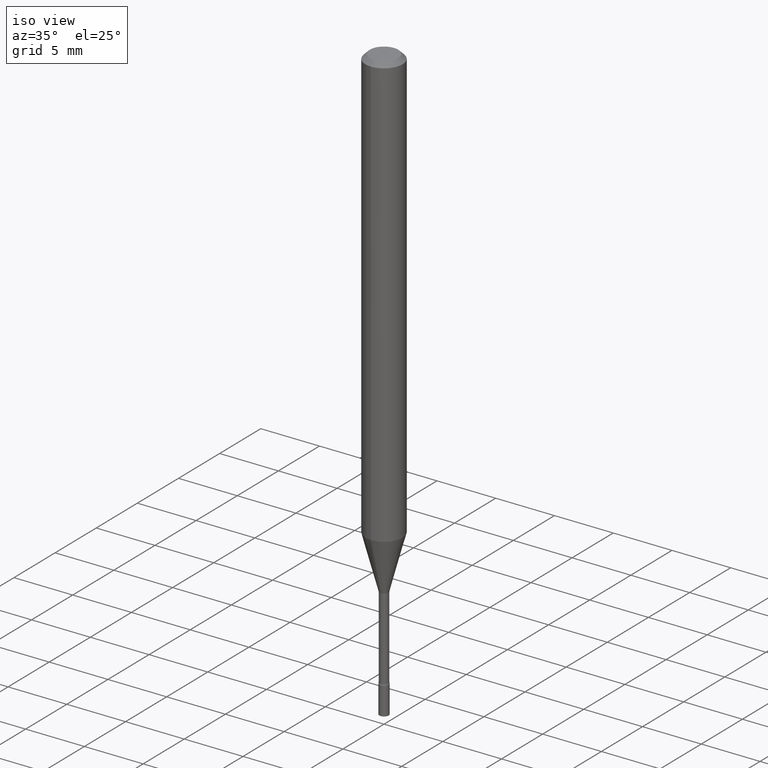
[diagram: clean part render]
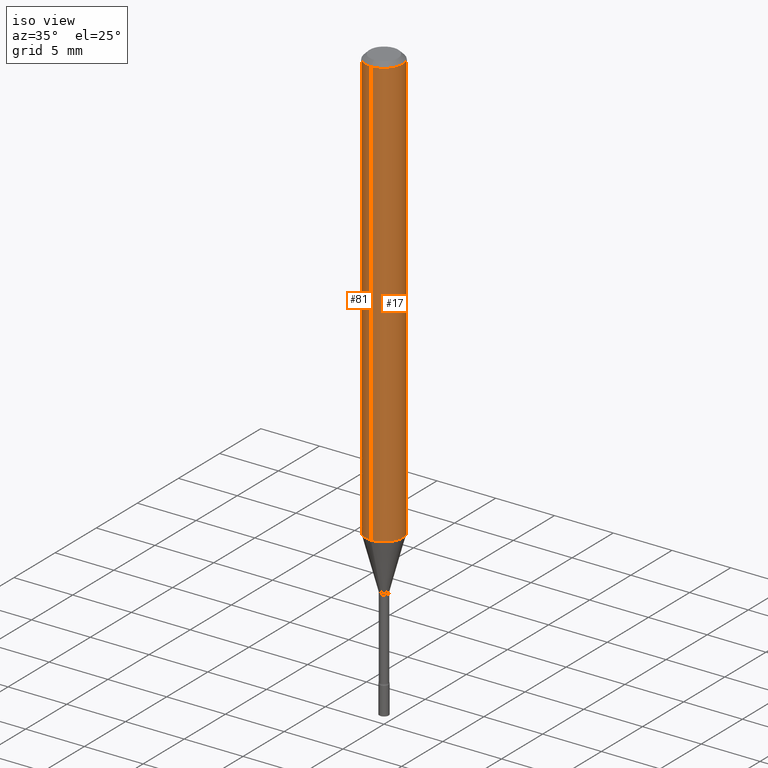
[diagram: same view with one multi-face feature highlighted, each face labeled with its STEP entity id]
A machine part, iso view. The highlighted faces form ONE feature: a constant-radius fillet chain: 2 tangent blend faces with common blend radius 1.5875 mm. The faces share edges in the B-rep.
Their STEP definitions:
[1] entity #17 (Cylinder):
#17 = ADVANCED_FACE ( 'NONE', ( #200 ), #240, .T. ) ;
#113 = DIRECTION ( 'NONE',  ( -6.982962677686265922E-15, -1.000000000000000000, 3.491495255868049230E-15 ) ) ;
#124 = ORIENTED_EDGE ( 'NONE', *, *, #363, .F. ) ;
#138 = DIRECTION ( 'NONE',  ( -2.445459087978587807E-29, 3.491495255868048836E-15, 1.000000000000000000 ) ) ;
#147 = VERTEX_POINT ( 'NONE', #245 ) ;
#154 = VECTOR ( 'NONE', #138, 39.37007874015748143 ) ;
#170 = CARTESIAN_POINT ( 'NONE',  ( 3.543588001027327383E-29, -5.059344789351957682E-15, -1.449048163777072684 ) ) ;
#175 = CARTESIAN_POINT ( 'NONE',  ( 3.668188631967889173E-31, -5.237242883802084840E-17, -0.01500000000000003067 ) ) ;
#200 = FACE_OUTER_BOUND ( 'NONE', #253, .T. ) ;
#217 = VERTEX_POINT ( 'NONE', #368 ) ;
#224 = EDGE_CURVE ( 'NONE', #147, #374, #315, .T. ) ;
#240 = CYLINDRICAL_SURFACE ( 'NONE', #464, 0.06250000000000000000 ) ;
#245 = CARTESIAN_POINT ( 'NONE',  ( -4.364351673553563186E-16, -0.06250000000000507927, -1.449048163777072240 ) ) ;
#253 = EDGE_LOOP ( 'NONE', ( #429, #414, #124, #355 ) ) ;
#278 = EDGE_CURVE ( 'NONE', #374, #392, #422, .T. ) ;
#315 = CIRCLE ( 'NONE', #486, 0.06250000000000000000 ) ;
#339 = DIRECTION ( 'NONE',  ( -2.445459087978587807E-29, 3.491495255868049230E-15, 1.000000000000000000 ) ) ;
#341 = LINE ( 'NONE', #502, #154 ) ;
#342 = CARTESIAN_POINT ( 'NONE',  ( 4.440892098500978191E-16, 0.06249999999999492767, -1.449048163777072906 ) ) ;
#355 = ORIENTED_EDGE ( 'NONE', *, *, #424, .F. ) ;
#363 = EDGE_CURVE ( 'NONE', #217, #392, #485, .T. ) ;
#368 = CARTESIAN_POINT ( 'NONE',  ( -4.364351673553912750E-16, -0.06250000000000005551, -0.01499999999999981209 ) ) ;
#374 = VERTEX_POINT ( 'NONE', #342 ) ;
#379 = DIRECTION ( 'NONE',  ( -2.445459087978587807E-29, 3.491495255868049230E-15, 1.000000000000000000 ) ) ;
#382 = DIRECTION ( 'NONE',  ( -2.445459087978587807E-29, 3.491495255868048836E-15, 1.000000000000000000 ) ) ;
#383 = DIRECTION ( 'NONE',  ( -6.982962677686265922E-15, -1.000000000000000000, 3.483106191921935554E-15 ) ) ;
#392 = VERTEX_POINT ( 'NONE', #468 ) ;
#397 = DIRECTION ( 'NONE',  ( -2.445459087978587807E-29, 3.491495255868049230E-15, 1.000000000000000000 ) ) ;
#414 = ORIENTED_EDGE ( 'NONE', *, *, #278, .T. ) ;
#422 = LINE ( 'NONE', #425, #505 ) ;
#424 = EDGE_CURVE ( 'NONE', #147, #217, #341, .T. ) ;
#425 = CARTESIAN_POINT ( 'NONE',  ( 4.440892098500625669E-16, 0.06250000000000000000, -2.182184534917530769E-16 ) ) ;
#429 = ORIENTED_EDGE ( 'NONE', *, *, #224, .T. ) ;
#446 = AXIS2_PLACEMENT_3D ( 'NONE', #175, #339, #383 ) ;
#464 = AXIS2_PLACEMENT_3D ( 'NONE', #474, #397, #113 ) ;
#468 = CARTESIAN_POINT ( 'NONE',  ( 4.440892098500983121E-16, 0.06249999999999995143, -0.01500000000000024751 ) ) ;
#474 = CARTESIAN_POINT ( 'NONE',  ( 0.000000000000000000, 0.000000000000000000, 0.000000000000000000 ) ) ;
#485 = CIRCLE ( 'NONE', #446, 0.06250000000000000000 ) ;
#486 = AXIS2_PLACEMENT_3D ( 'NONE', #170, #379, #487 ) ;
#487 = DIRECTION ( 'NONE',  ( -6.982962677686265922E-15, -1.000000000000000000, 4.370956789862821150E-15 ) ) ;
#502 = CARTESIAN_POINT ( 'NONE',  ( -4.364351673553916201E-16, -0.06250000000000000000, 2.182184534917530769E-16 ) ) ;
#505 = VECTOR ( 'NONE', #382, 39.37007874015748143 ) ;
[2] entity #81 (Cylinder):
#6 = AXIS2_PLACEMENT_3D ( 'NONE', #301, #458, #495 ) ;
#27 = FACE_OUTER_BOUND ( 'NONE', #387, .T. ) ;
#31 = CYLINDRICAL_SURFACE ( 'NONE', #60, 0.06250000000000000000 ) ;
#51 = CIRCLE ( 'NONE', #6, 0.06250000000000000000 ) ;
#60 = AXIS2_PLACEMENT_3D ( 'NONE', #191, #373, #453 ) ;
#81 = ADVANCED_FACE ( 'NONE', ( #27 ), #31, .T. ) ;
#138 = DIRECTION ( 'NONE',  ( -2.445459087978587807E-29, 3.491495255868048836E-15, 1.000000000000000000 ) ) ;
#147 = VERTEX_POINT ( 'NONE', #245 ) ;
#154 = VECTOR ( 'NONE', #138, 39.37007874015748143 ) ;
#191 = CARTESIAN_POINT ( 'NONE',  ( 0.000000000000000000, 0.000000000000000000, 0.000000000000000000 ) ) ;
#217 = VERTEX_POINT ( 'NONE', #368 ) ;
#245 = CARTESIAN_POINT ( 'NONE',  ( -4.364351673553563186E-16, -0.06250000000000507927, -1.449048163777072240 ) ) ;
#273 = CARTESIAN_POINT ( 'NONE',  ( 3.668188631967889173E-31, -5.237242883802084840E-17, -0.01500000000000003067 ) ) ;
#278 = EDGE_CURVE ( 'NONE', #374, #392, #422, .T. ) ;
#285 = CIRCLE ( 'NONE', #327, 0.06250000000000000000 ) ;
#289 = EDGE_CURVE ( 'NONE', #374, #147, #51, .T. ) ;
#296 = ORIENTED_EDGE ( 'NONE', *, *, #278, .F. ) ;
#301 = CARTESIAN_POINT ( 'NONE',  ( 3.543588001027327383E-29, -5.059344789351957682E-15, -1.449048163777072684 ) ) ;
#327 = AXIS2_PLACEMENT_3D ( 'NONE', #273, #349, #473 ) ;
#341 = LINE ( 'NONE', #502, #154 ) ;
#342 = CARTESIAN_POINT ( 'NONE',  ( 4.440892098500978191E-16, 0.06249999999999492767, -1.449048163777072906 ) ) ;
#349 = DIRECTION ( 'NONE',  ( -2.445459087978587807E-29, 3.491495255868049230E-15, 1.000000000000000000 ) ) ;
#357 = ORIENTED_EDGE ( 'NONE', *, *, #289, .T. ) ;
#368 = CARTESIAN_POINT ( 'NONE',  ( -4.364351673553912750E-16, -0.06250000000000005551, -0.01499999999999981209 ) ) ;
#373 = DIRECTION ( 'NONE',  ( -2.445459087978587807E-29, 3.491495255868049230E-15, 1.000000000000000000 ) ) ;
#374 = VERTEX_POINT ( 'NONE', #342 ) ;
#382 = DIRECTION ( 'NONE',  ( -2.445459087978587807E-29, 3.491495255868048836E-15, 1.000000000000000000 ) ) ;
#387 = EDGE_LOOP ( 'NONE', ( #296, #357, #438, #421 ) ) ;
#392 = VERTEX_POINT ( 'NONE', #468 ) ;
#421 = ORIENTED_EDGE ( 'NONE', *, *, #465, .F. ) ;
#422 = LINE ( 'NONE', #425, #505 ) ;
#424 = EDGE_CURVE ( 'NONE', #147, #217, #341, .T. ) ;
#425 = CARTESIAN_POINT ( 'NONE',  ( 4.440892098500625669E-16, 0.06250000000000000000, -2.182184534917530769E-16 ) ) ;
#438 = ORIENTED_EDGE ( 'NONE', *, *, #424, .T. ) ;
#453 = DIRECTION ( 'NONE',  ( -6.982962677686265922E-15, -1.000000000000000000, 3.491495255868049230E-15 ) ) ;
#458 = DIRECTION ( 'NONE',  ( -2.445459087978587807E-29, 3.491495255868049230E-15, 1.000000000000000000 ) ) ;
#465 = EDGE_CURVE ( 'NONE', #392, #217, #285, .T. ) ;
#468 = CARTESIAN_POINT ( 'NONE',  ( 4.440892098500983121E-16, 0.06249999999999995143, -0.01500000000000024751 ) ) ;
#473 = DIRECTION ( 'NONE',  ( -6.982962677686265922E-15, -1.000000000000000000, 3.483106191921935554E-15 ) ) ;
#495 = DIRECTION ( 'NONE',  ( -6.982962677686265922E-15, -1.000000000000000000, 4.370956789862821150E-15 ) ) ;
#502 = CARTESIAN_POINT ( 'NONE',  ( -4.364351673553916201E-16, -0.06250000000000000000, 2.182184534917530769E-16 ) ) ;
#505 = VECTOR ( 'NONE', #382, 39.37007874015748143 ) ;